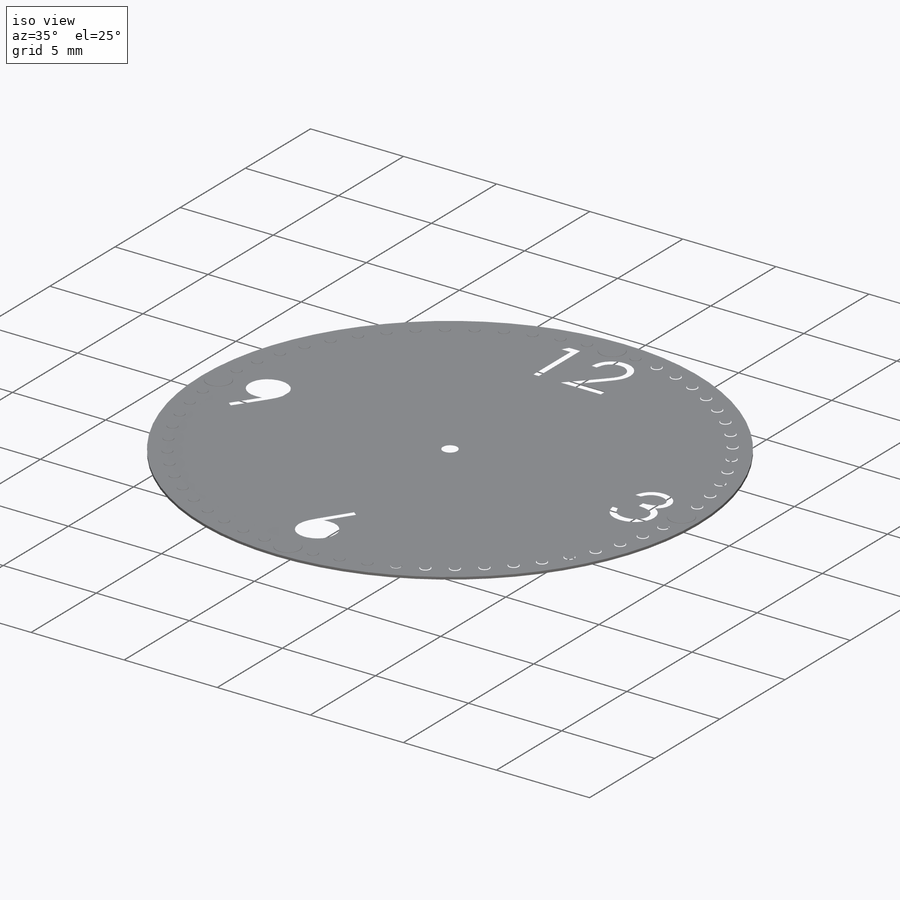
[diagram: iso view]
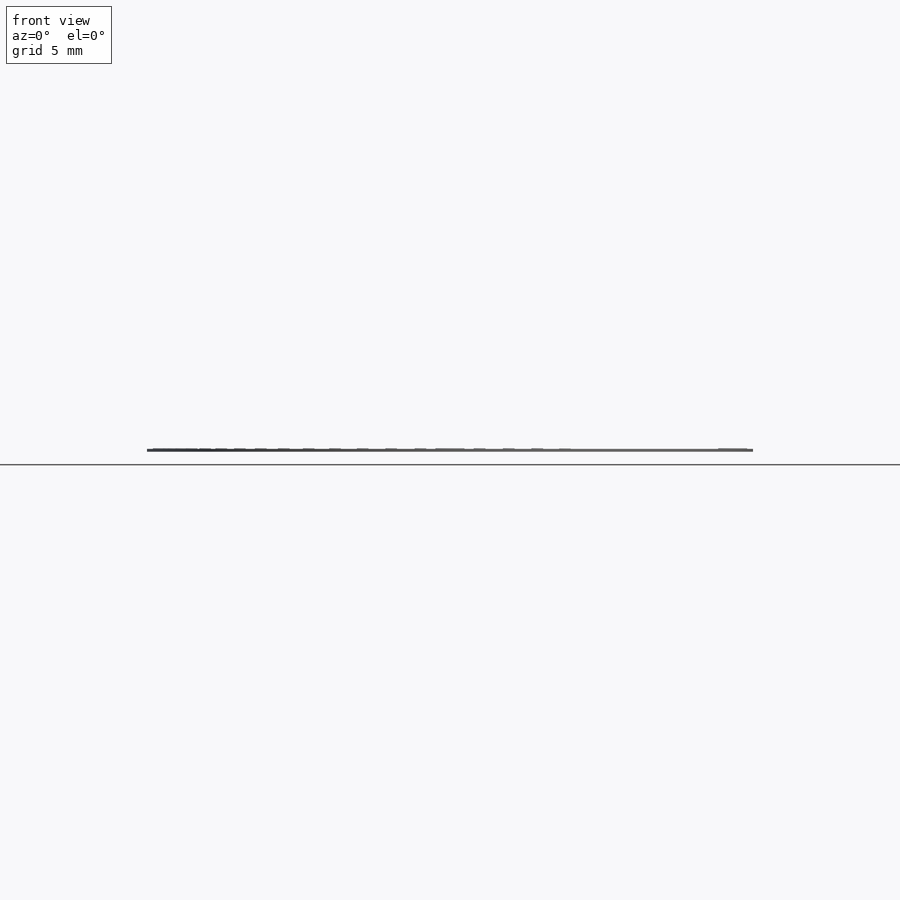
[diagram: front view]
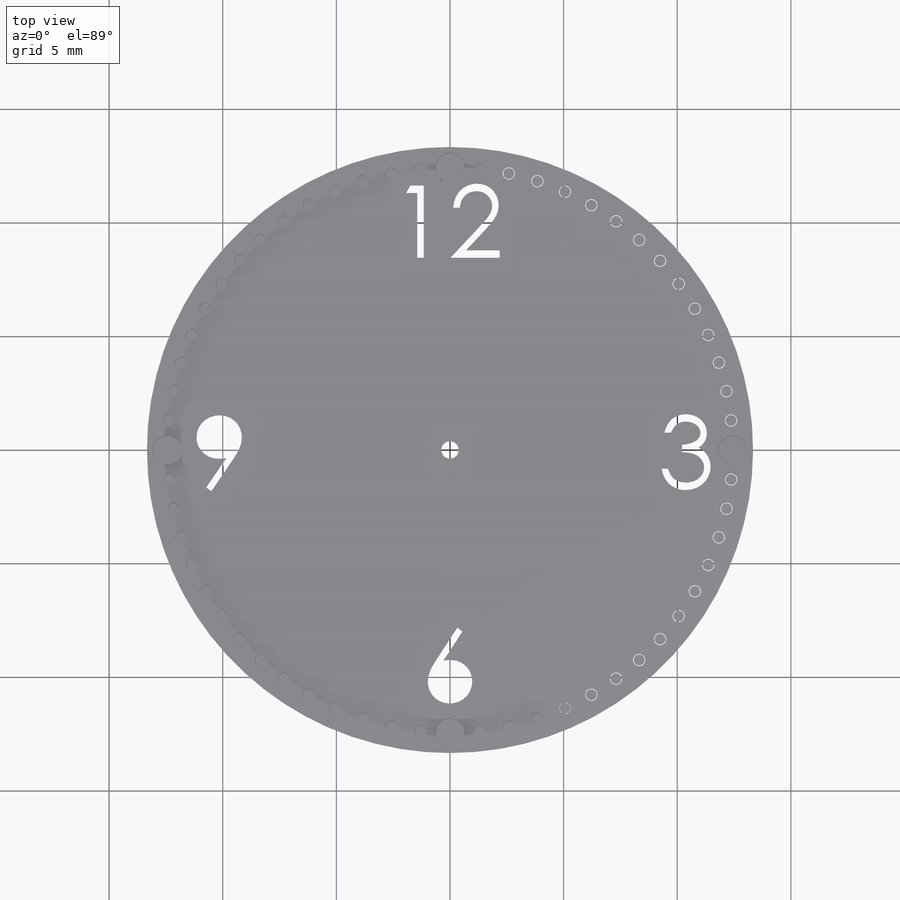
[diagram: top view]
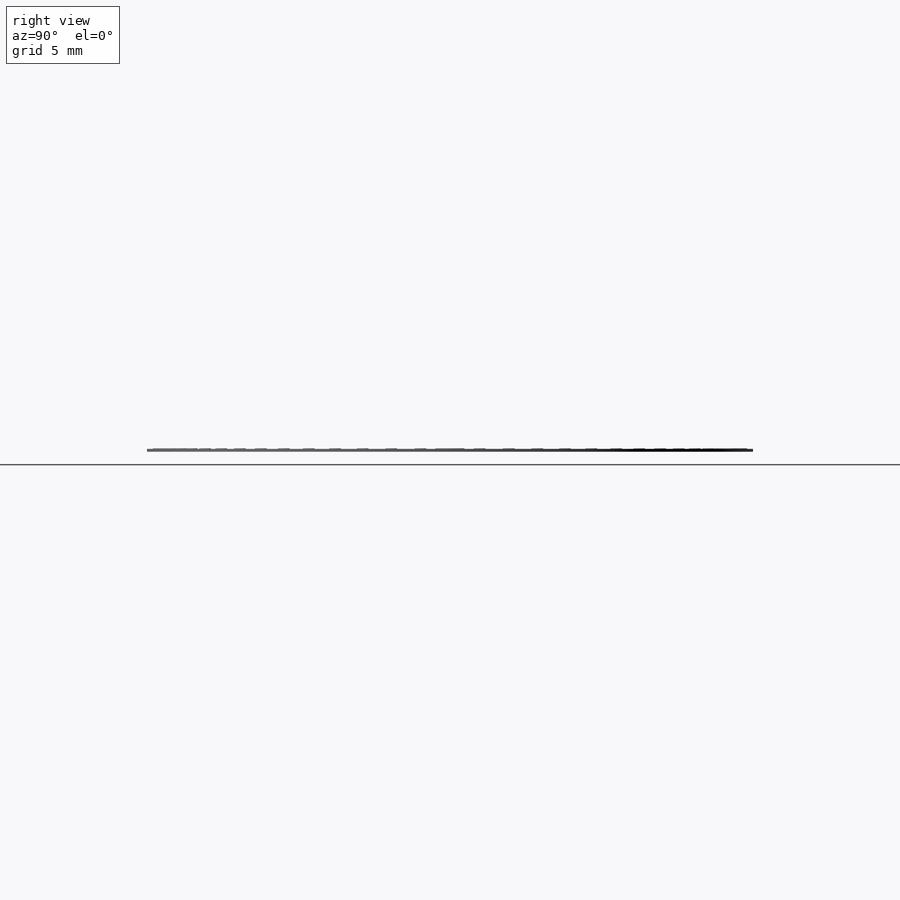
[diagram: right view]
SOLIDWORKS PART (.sldprt)
format: sldprt  version: not decoded by parser v0  size: 1,465,344 bytes
history: native  units: mm
features: sketch x13, extrude x8, fillet x4, pattern_circular x2, material x1 (+11 scaffold rows collapsed)
feature tree (39):
  scaffold x11  (default folders/planes/origin — collapsed)
  material  "Material <not specified>"
  sketch  "Sketch1"  dims[D1=26.67mm]
  extrude  "Extrude1"  Depth=0.127mm
  sketch  "Sketch2"  dims[D1=1.27mm]
  extrude  "Extrude2"  Depth=0.0254mm
  fillet  "Fillet1"  Radius=0.0127mm
  sketch  "Sketch4"
  pattern_circular  "CirPattern1"  Count=4 Angle=360deg
  sketch  "Sketch5"  dims[c1.D2=0.508mm c1.D1=~18.429854mm c2.D1=6.0deg]
  extrude  "Extrude3"  Depth=0.0254mm
  fillet  "Fillet2"  Radius=0.0127mm
  pattern_circular  "CirPattern2"  Count=60 Angle=360deg
  sketch  "Sketch6"  dims[D1=0.762mm]
  sketch  "Sketch9"
  extrude  "Extrude13"  Depth=0.635mm
  sketch  "Sketch16"
  sketch  "Sketch25"
  sketch  "Sketch29"
  sketch  "Sketch27"  dims[D1=0.0mm D2=0.0mm]
  extrude  "Extrude18"  Depth=0.0254mm
  sketch  "Sketch20"  dims[D1=0.0mm D2=0.0mm]
  extrude  "Extrude16"  Depth=0.0254mm
  sketch  "Sketch24"
  extrude  "Extrude17"  Depth=0.0254mm
  sketch  "Sketch30"  dims[D1=0.0mm]
  extrude  "Extrude19"  Depth=0.0254mm
  fillet  "Fillet9"  Radius=0.00254mm
  fillet  "Fillet10"  Radius=0.00254mm
decode coverage: 21 of 27 modeling features carry decoded parameters
note: ~ marks probable driven/reference dimensions
note: suppression state not decoded; provenance and decode notes live in map.json
